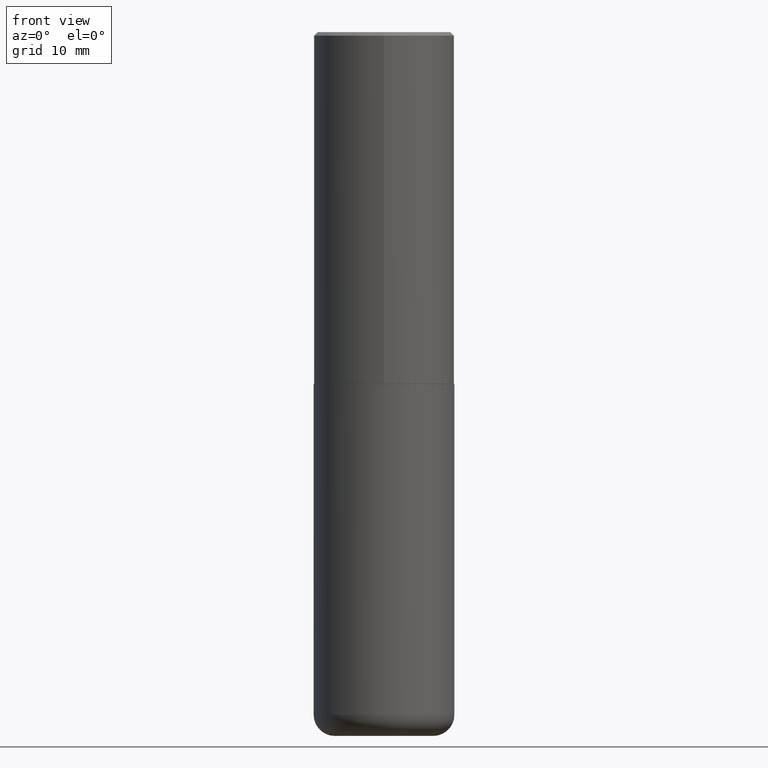
[diagram: clean part render]
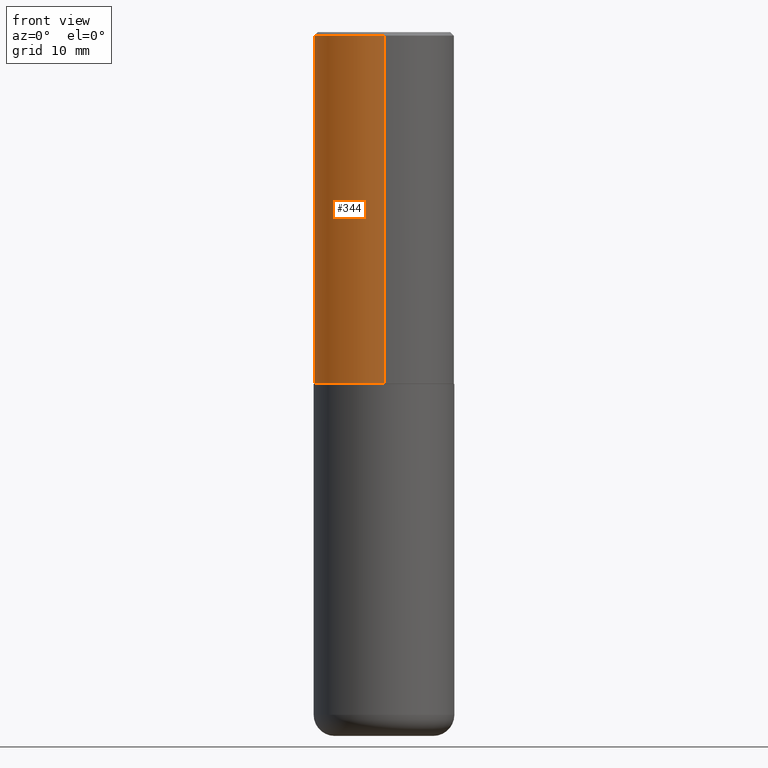
[diagram: same view with one face highlighted and labeled with its STEP entity id]
A machine part, front view. The second image highlights one B-rep face of the part: STEP entity #344.
In plain terms, the highlighted cylindrical surface (partial cylindrical patch) has radius 10 mm, axis along (-0, 0, 1).
Its self-contained STEP definition (entity closure, byte-faithful):
#14 = CARTESIAN_POINT ( 'NONE',  ( 2.797406750687515181E-15, 0.3937000000000001609, -1.373224176831512065E-15 ) ) ;
#17 = AXIS2_PLACEMENT_3D ( 'NONE', #181, #178, #303 ) ;
#19 = CYLINDRICAL_SURFACE ( 'NONE', #17, 0.3937000000000001609 ) ;
#30 = CARTESIAN_POINT ( 'NONE',  ( 2.797406750687540030E-15, 0.3936999999999934441, -1.967500000000001359 ) ) ;
#56 = CIRCLE ( 'NONE', #98, 0.3937000000000000499 ) ;
#61 = EDGE_CURVE ( 'NONE', #327, #86, #56, .T. ) ;
#62 = CARTESIAN_POINT ( 'NONE',  ( -2.749192406205084005E-15, -0.3937000000000001609, 1.373224176831512065E-15 ) ) ;
#79 = VERTEX_POINT ( 'NONE', #358 ) ;
#80 = AXIS2_PLACEMENT_3D ( 'NONE', #228, #229, #201 ) ;
#86 = VERTEX_POINT ( 'NONE', #294 ) ;
#98 = AXIS2_PLACEMENT_3D ( 'NONE', #140, #389, #354 ) ;
#140 = CARTESIAN_POINT ( 'NONE',  ( 4.895804672692082949E-31, -6.975992770289649092E-17, -0.02000000000000008715 ) ) ;
#160 = DIRECTION ( 'NONE',  ( -2.447902336346030930E-29, 3.487996385144809360E-15, 1.000000000000000000 ) ) ;
#178 = DIRECTION ( 'NONE',  ( -2.447902336346030930E-29, 3.487996385144809755E-15, 1.000000000000000000 ) ) ;
#181 = CARTESIAN_POINT ( 'NONE',  ( 0.000000000000000000, 0.000000000000000000, 0.000000000000000000 ) ) ;
#182 = VERTEX_POINT ( 'NONE', #30 ) ;
#201 = DIRECTION ( 'NONE',  ( -6.982962677686265922E-15, -1.000000000000000000, 3.469453890861393601E-15 ) ) ;
#203 = VECTOR ( 'NONE', #160, 39.37007874015748143 ) ;
#205 = ORIENTED_EDGE ( 'NONE', *, *, #404, .T. ) ;
#222 = LINE ( 'NONE', #62, #203 ) ;
#227 = EDGE_CURVE ( 'NONE', #182, #79, #346, .T. ) ;
#228 = CARTESIAN_POINT ( 'NONE',  ( 4.816247846760815671E-29, -6.862632887772413316E-15, -1.967500000000000027 ) ) ;
#229 = DIRECTION ( 'NONE',  ( -2.447902336346030930E-29, 3.487996385144809755E-15, 1.000000000000000000 ) ) ;
#240 = FACE_OUTER_BOUND ( 'NONE', #367, .T. ) ;
#243 = ORIENTED_EDGE ( 'NONE', *, *, #227, .T. ) ;
#274 = CARTESIAN_POINT ( 'NONE',  ( 2.749192406205083217E-15, 0.3936999999999999389, -0.02000000000000146105 ) ) ;
#275 = ORIENTED_EDGE ( 'NONE', *, *, #61, .F. ) ;
#294 = CARTESIAN_POINT ( 'NONE',  ( -2.700978061722651252E-15, -0.3937000000000001054, -0.01999999999999870978 ) ) ;
#297 = VECTOR ( 'NONE', #407, 39.37007874015748143 ) ;
#298 = ORIENTED_EDGE ( 'NONE', *, *, #314, .F. ) ;
#303 = DIRECTION ( 'NONE',  ( -6.982962677686265922E-15, -1.000000000000000000, 3.487996385144809360E-15 ) ) ;
#305 = LINE ( 'NONE', #14, #297 ) ;
#314 = EDGE_CURVE ( 'NONE', #182, #327, #305, .T. ) ;
#327 = VERTEX_POINT ( 'NONE', #274 ) ;
#344 = ADVANCED_FACE ( 'NONE', ( #240 ), #19, .T. ) ;
#346 = CIRCLE ( 'NONE', #80, 0.3937000000000002720 ) ;
#354 = DIRECTION ( 'NONE',  ( -6.982962677686265133E-15, -1.000000000000000000, 3.491137977679279424E-15 ) ) ;
#358 = CARTESIAN_POINT ( 'NONE',  ( -2.749192406205036674E-15, -0.3937000000000070998, -1.967499999999998694 ) ) ;
#367 = EDGE_LOOP ( 'NONE', ( #298, #243, #205, #275 ) ) ;
#389 = DIRECTION ( 'NONE',  ( -2.447902336346030930E-29, 3.487996385144809755E-15, 1.000000000000000000 ) ) ;
#404 = EDGE_CURVE ( 'NONE', #79, #86, #222, .T. ) ;
#407 = DIRECTION ( 'NONE',  ( -2.447902336346030930E-29, 3.487996385144809360E-15, 1.000000000000000000 ) ) ;